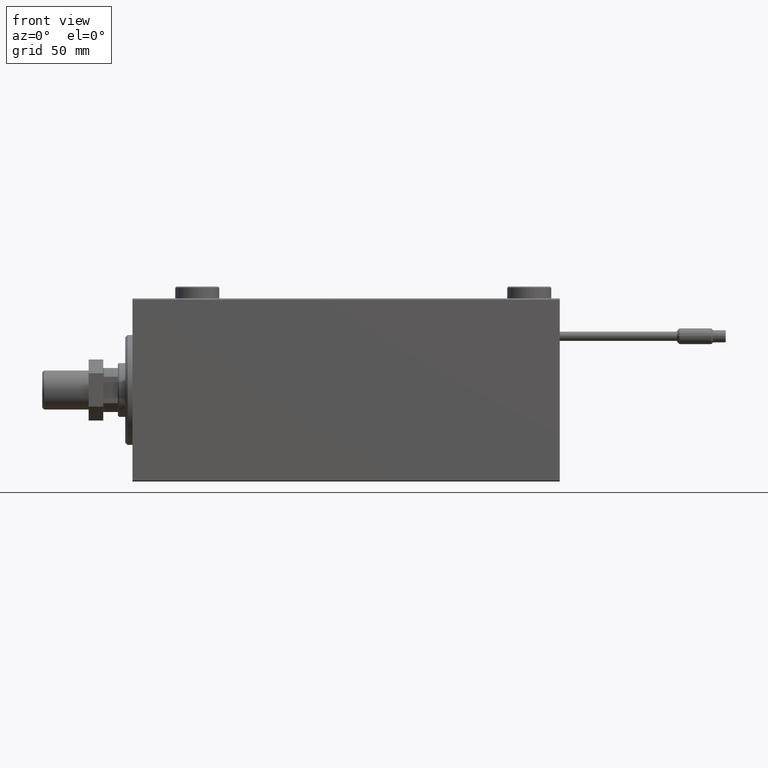
[diagram: clean part render]
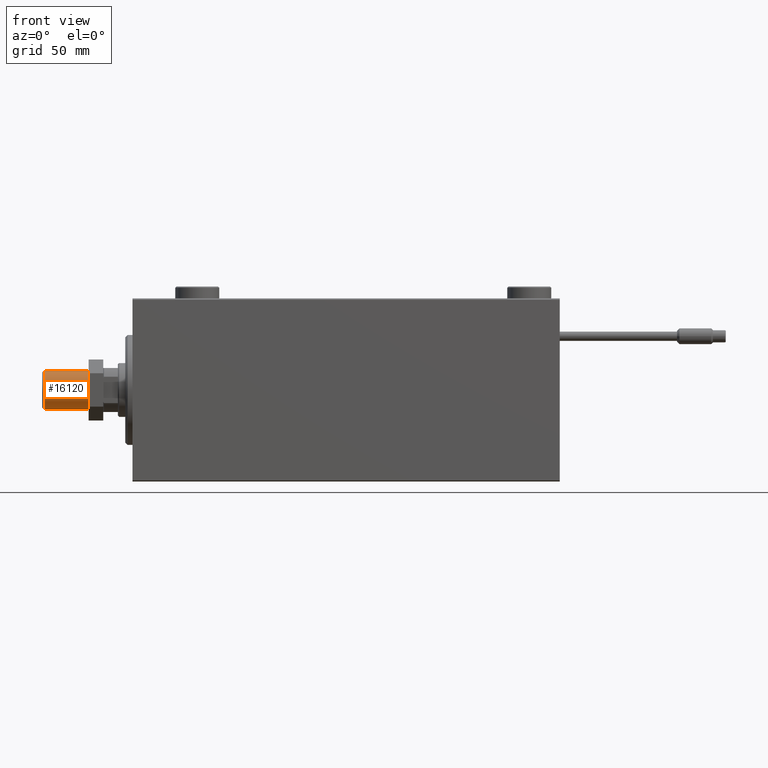
[diagram: same view with one face highlighted and labeled with its STEP entity id]
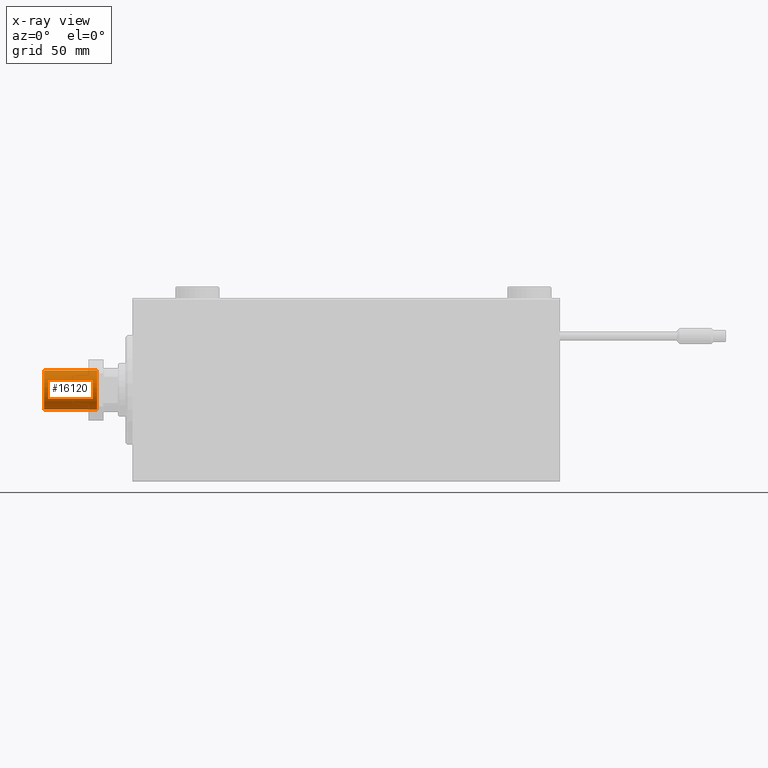
[diagram: x-ray of the same camera — body ghosted, the highlighted face saturated]
A machine part, front view. The second image highlights one B-rep face of the part: STEP entity #16120.
The next image is the same camera in x-ray: the body ghosted, the highlighted face saturated — about 0% of this face is hidden behind the body in this view.
In plain terms, the highlighted cylindrical surface (edge-blend (fillet) strip) has radius 8 mm, axis along (-1, -0, 0).
Its self-contained STEP definition (entity closure, byte-faithful):
#879 = ORIENTED_EDGE ( 'NONE', *, *, #3136, .F. ) ;
#1113 = AXIS2_PLACEMENT_3D ( 'NONE', #31301, #43689, #39924 ) ;
#1873 = ORIENTED_EDGE ( 'NONE', *, *, #50020, .T. ) ;
#2833 = CARTESIAN_POINT ( 'NONE',  ( -8.000000000000000000, 0.000000000000000000, 22.50000000000000000 ) ) ;
#3136 = EDGE_CURVE ( 'NONE', #52955, #28931, #7203, .T. ) ;
#3589 = LINE ( 'NONE', #11921, #38799 ) ;
#3812 = CARTESIAN_POINT ( 'NONE',  ( 0.000000000000000000, 0.000000000000000000, 22.50000000000000000 ) ) ;
#4071 = EDGE_LOOP ( 'NONE', ( #26512, #879, #1873, #26754 ) ) ;
#7066 = CARTESIAN_POINT ( 'NONE',  ( 8.000000000000000000, 9.797174393178823685E-16, 0.8000000000000160316 ) ) ;
#7203 = CIRCLE ( 'NONE', #15820, 8.000000000000000000 ) ;
#9759 = VERTEX_POINT ( 'NONE', #7066 ) ;
#10648 = DIRECTION ( 'NONE',  ( -0.000000000000000000, -0.000000000000000000, -1.000000000000000000 ) ) ;
#11921 = CARTESIAN_POINT ( 'NONE',  ( 8.000000000000000000, 9.797174393178823685E-16, 22.50000000000000000 ) ) ;
#11981 = DIRECTION ( 'NONE',  ( 1.000000000000000000, 0.000000000000000000, 0.000000000000000000 ) ) ;
#15820 = AXIS2_PLACEMENT_3D ( 'NONE', #16029, #32482, #11981 ) ;
#16029 = CARTESIAN_POINT ( 'NONE',  ( 0.000000000000000000, 0.000000000000000000, 22.50000000000000000 ) ) ;
#16120 = ADVANCED_FACE ( 'NONE', ( #40727 ), #16467, .T. ) ;
#16467 = CYLINDRICAL_SURFACE ( 'NONE', #24800, 8.000000000000000000 ) ;
#19791 = CARTESIAN_POINT ( 'NONE',  ( -8.000000000000000000, 0.000000000000000000, 0.8000000000000160316 ) ) ;
#20233 = CARTESIAN_POINT ( 'NONE',  ( -8.000000000000000000, 0.000000000000000000, 22.50000000000000000 ) ) ;
#24800 = AXIS2_PLACEMENT_3D ( 'NONE', #3812, #32914, #28847 ) ;
#26512 = ORIENTED_EDGE ( 'NONE', *, *, #43089, .F. ) ;
#26754 = ORIENTED_EDGE ( 'NONE', *, *, #46697, .T. ) ;
#28355 = DIRECTION ( 'NONE',  ( -0.000000000000000000, -0.000000000000000000, -1.000000000000000000 ) ) ;
#28752 = VECTOR ( 'NONE', #10648, 1000.000000000000000 ) ;
#28847 = DIRECTION ( 'NONE',  ( -1.000000000000000000, 0.000000000000000000, 0.000000000000000000 ) ) ;
#28931 = VERTEX_POINT ( 'NONE', #49166 ) ;
#29504 = CIRCLE ( 'NONE', #1113, 8.000000000000000000 ) ;
#29862 = VERTEX_POINT ( 'NONE', #19791 ) ;
#31301 = CARTESIAN_POINT ( 'NONE',  ( 0.000000000000000000, 0.000000000000000000, 0.8000000000000160316 ) ) ;
#32482 = DIRECTION ( 'NONE',  ( 0.000000000000000000, 0.000000000000000000, 1.000000000000000000 ) ) ;
#32914 = DIRECTION ( 'NONE',  ( -0.000000000000000000, -0.000000000000000000, -1.000000000000000000 ) ) ;
#38799 = VECTOR ( 'NONE', #28355, 1000.000000000000000 ) ;
#39924 = DIRECTION ( 'NONE',  ( 1.000000000000000000, 0.000000000000000000, 0.000000000000000000 ) ) ;
#40727 = FACE_OUTER_BOUND ( 'NONE', #4071, .T. ) ;
#43089 = EDGE_CURVE ( 'NONE', #28931, #9759, #3589, .T. ) ;
#43689 = DIRECTION ( 'NONE',  ( -0.000000000000000000, -0.000000000000000000, 1.000000000000000000 ) ) ;
#46697 = EDGE_CURVE ( 'NONE', #29862, #9759, #29504, .T. ) ;
#47563 = LINE ( 'NONE', #2833, #28752 ) ;
#49166 = CARTESIAN_POINT ( 'NONE',  ( 8.000000000000000000, 9.797174393178823685E-16, 22.50000000000000000 ) ) ;
#50020 = EDGE_CURVE ( 'NONE', #52955, #29862, #47563, .T. ) ;
#52955 = VERTEX_POINT ( 'NONE', #20233 ) ;